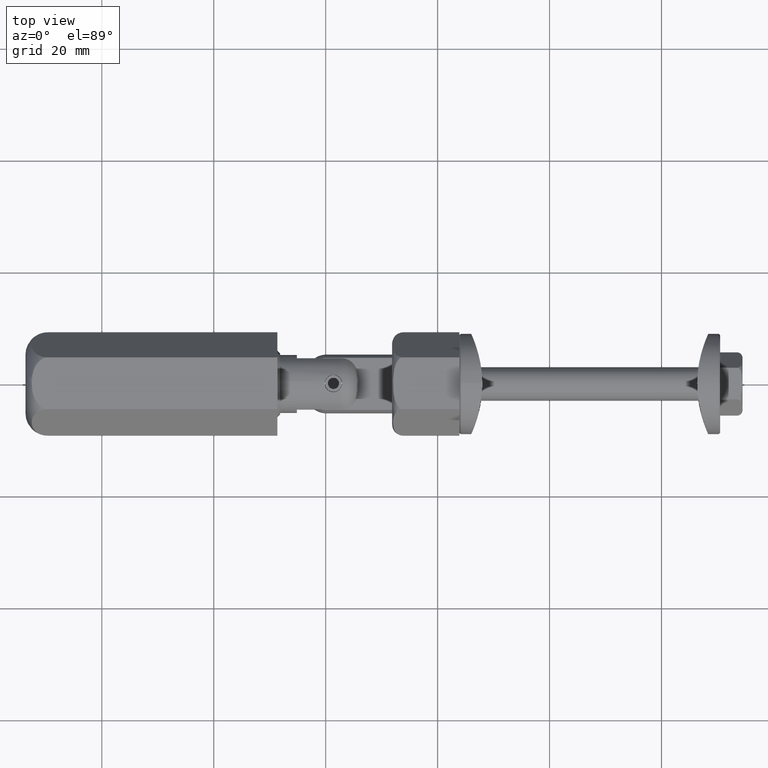
[diagram: clean part render]
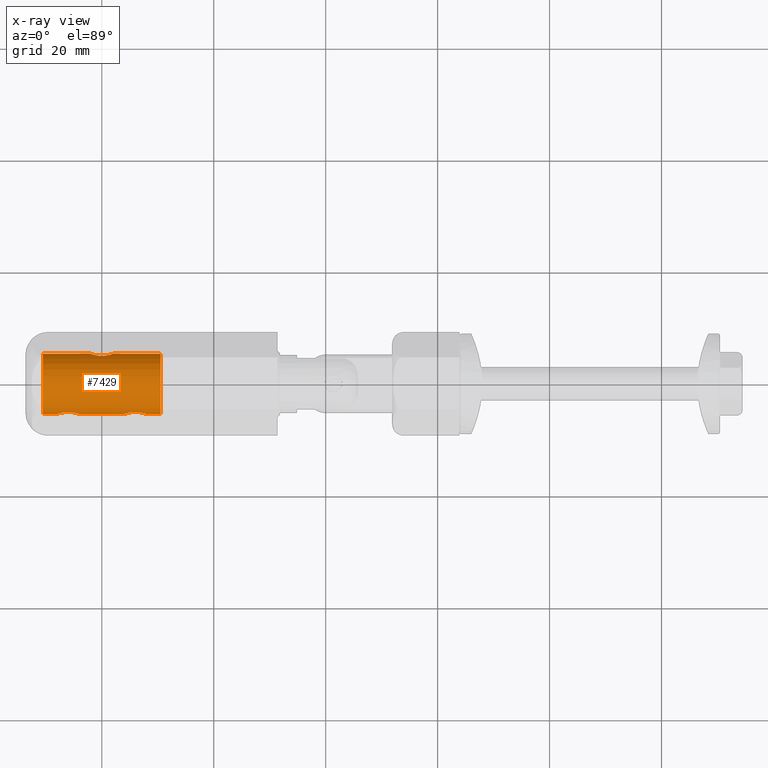
[diagram: x-ray — body ghosted, one internal face saturated and labeled with its STEP entity id]
A machine part, top view, then the same camera in x-ray: the body is ghosted and one INTERNAL B-rep face — a face not visible from any outside direction — is saturated and labeled: STEP entity #7429.
In plain terms, the highlighted cylindrical surface (bore or boss wall) has radius 5.4 mm, axis along (-1, -0, -0).
Its self-contained STEP definition (entity closure, byte-faithful):
#135 = CARTESIAN_POINT ( 'NONE',  ( -7.991625187186429891, -5.358553140657541292, 0.6802209089531774389 ) ) ;
#191 = CARTESIAN_POINT ( 'NONE',  ( -6.140251081764645846, -4.974937185533103268, -2.099999999999993872 ) ) ;
#259 = CARTESIAN_POINT ( 'NONE',  ( -7.282794228918615609, -5.136471162072797192, -1.668273000258003291 ) ) ;
#264 = CARTESIAN_POINT ( 'NONE',  ( -10.49999999999999822, 0.000000000000000000, 0.000000000000000000 ) ) ;
#323 = CARTESIAN_POINT ( 'NONE',  ( -7.884753136561721831, -5.319757067836338393, 0.9364704936265901836 ) ) ;
#441 = CARTESIAN_POINT ( 'NONE',  ( -4.417717275697473411, -5.219672051547602720, 1.387521242124890364 ) ) ;
#506 = CARTESIAN_POINT ( 'NONE',  ( -6.000000000000000000, -4.974937185533103268, -2.099999999999994316 ) ) ;
#514 = EDGE_LOOP ( 'NONE', ( #5483 ) ) ;
#568 = CARTESIAN_POINT ( 'NONE',  ( -4.180161386774108756, -5.296858274872640493, 1.056724491976107405 ) ) ;
#666 = CARTESIAN_POINT ( 'NONE',  ( 1.668412868437795016, 5.246760572531174560, -1.282527867362458052 ) ) ;
#738 = CARTESIAN_POINT ( 'NONE',  ( -1.668050932411029530, 5.246643377326954294, -1.283026028857427114 ) ) ;
#751 = CARTESIAN_POINT ( 'NONE',  ( 3.968306716493245290, -5.373745689870734310, -0.5490319698242766000 ) ) ;
#851 = CARTESIAN_POINT ( 'NONE',  ( -2.031798469995393042, 5.373785946887119636, -0.5484948635254475180 ) ) ;
#879 = FACE_BOUND ( 'NONE', #17282, .T. ) ;
#915 = CARTESIAN_POINT ( 'NONE',  ( -2.099908249304174301, 5.399964319180401873, 0.1399772001405748534 ) ) ;
#929 = CARTESIAN_POINT ( 'NONE',  ( 7.668412868437791019, -5.246760572531178113, 1.282527867362456497 ) ) ;
#1036 = CARTESIAN_POINT ( 'NONE',  ( 4.612394851623447423, -5.164003895428391111, 1.582107489069745077 ) ) ;
#1072 = CARTESIAN_POINT ( 'NONE',  ( 1.579908977316313523, 5.218962836947516060, 1.390125420575113013 ) ) ;
#1088 = CARTESIAN_POINT ( 'NONE',  ( 7.884845962894784677, -5.319794957164332594, -0.9360331588650834256 ) ) ;
#1472 = CARTESIAN_POINT ( 'NONE',  ( -7.990577497093299009, -5.358170459842813926, -0.6828537137042841598 ) ) ;
#1603 = CARTESIAN_POINT ( 'NONE',  ( -6.935615349940571051, -5.060604854083007531, -1.885070664797263262 ) ) ;
#1747 = DIRECTION ( 'NONE',  ( 0.000000000000000000, 0.000000000000000000, -1.000000000000000000 ) ) ;
#1906 = CARTESIAN_POINT ( 'NONE',  ( -7.580157232215623431, -5.219040626659445792, 1.389825628000990632 ) ) ;
#1965 = CARTESIAN_POINT ( 'NONE',  ( -4.115154037105216212, -5.319794957164331706, -0.9360331588650823154 ) ) ;
#2034 = CARTESIAN_POINT ( 'NONE',  ( -6.555608497514157307, -4.999672802791437221, 2.043514743027719849 ) ) ;
#2132 = CARTESIAN_POINT ( 'NONE',  ( 2.086055961531837699, 5.394534081697162087, -0.2782718908838490157 ) ) ;
#2145 = CARTESIAN_POINT ( 'NONE',  ( 3.900091750695831916, -5.399964319180400096, -0.1399772001405726329 ) ) ;
#2188 = FACE_OUTER_BOUND ( 'NONE', #5687, .T. ) ;
#2195 = CARTESIAN_POINT ( 'NONE',  ( -1.990577497093305670, 5.358170459842813926, 0.6828537137042874905 ) ) ;
#2257 = CARTESIAN_POINT ( 'NONE',  ( -1.819803535374707515, 5.296844128638656279, -1.056818241932206970 ) ) ;
#2272 = CARTESIAN_POINT ( 'NONE',  ( 4.323390838607419795, -5.246645227839644932, -1.293235488252917120 ) ) ;
#2316 = CARTESIAN_POINT ( 'NONE',  ( -1.056260136305510855, 5.084634835458997415, -1.820147972506347189 ) ) ;
#2378 = CARTESIAN_POINT ( 'NONE',  ( 6.934736164892474797, -5.060438581250524592, 1.885516516394398323 ) ) ;
#2437 = CARTESIAN_POINT ( 'NONE',  ( 7.388245652433504951, -5.164163407327605704, 1.581647187419967127 ) ) ;
#2483 = VERTEX_POINT ( 'NONE', #9741 ) ;
#2559 = CARTESIAN_POINT ( 'NONE',  ( 7.579908977316311081, -5.218962836947517836, -1.390125420575107906 ) ) ;
#2993 = AXIS2_PLACEMENT_3D ( 'NONE', #13216, #12044, #10579 ) ;
#3077 = CARTESIAN_POINT ( 'NONE',  ( -7.832585576661316829, -5.300824229775854768, -1.061311438376507432 ) ) ;
#3144 = CARTESIAN_POINT ( 'NONE',  ( -7.282948882842536165, -5.136514749360887144, 1.668132573082893533 ) ) ;
#3330 = CARTESIAN_POINT ( 'NONE',  ( -4.114300735567389289, -5.320096769864114172, 0.9343951663687556364 ) ) ;
#3485 = CARTESIAN_POINT ( 'NONE',  ( 1.388245652433512056, 5.164163407327602151, -1.581647187419972012 ) ) ;
#3547 = CARTESIAN_POINT ( 'NONE',  ( 2.043419194627273061, 5.377346774636370341, 0.5564597994211183396 ) ) ;
#3558 = CARTESIAN_POINT ( 'NONE',  ( 3.899909160529582586, -5.400035326454199591, 0.1372105609176197671 ) ) ;
#3604 = CARTESIAN_POINT ( 'NONE',  ( 0.1374320018480999495, 4.974919345566272355, -2.100042263199663140 ) ) ;
#3670 = CARTESIAN_POINT ( 'NONE',  ( 7.818931679217421049, -5.296538715663783314, -1.058394221551734571 ) ) ;
#3715 = CARTESIAN_POINT ( 'NONE',  ( -1.282948882842542604, 5.136514749360886256, -1.668132573082898640 ) ) ;
#3728 = CARTESIAN_POINT ( 'NONE',  ( 7.282983889225443264, -5.136531177239205270, 1.668071361485010229 ) ) ;
#3789 = CARTESIAN_POINT ( 'NONE',  ( 7.991555481169719144, -5.358531623440703662, 0.6801932139016383383 ) ) ;
#3844 = CARTESIAN_POINT ( 'NONE',  ( 3.968201530004614952, -5.373785946887118747, 0.5484948635254484062 ) ) ;
#4183 = CARTESIAN_POINT ( 'NONE',  ( 6.000000000000000000, -4.974937185533103268, -2.099999999999992095 ) ) ;
#4355 = DIRECTION ( 'NONE',  ( 1.000000000000000000, -0.000000000000000000, -0.000000000000000000 ) ) ;
#4538 = CARTESIAN_POINT ( 'NONE',  ( -4.333736240929697558, -5.246069464623563050, -1.285408832661303569 ) ) ;
#4543 = DIRECTION ( 'NONE',  ( 0.000000000000000000, 0.000000000000000000, -1.000000000000000000 ) ) ;
#4685 = VERTEX_POINT ( 'NONE', #9443 ) ;
#4791 = CARTESIAN_POINT ( 'NONE',  ( -7.387605148376553466, -5.164003895428391111, 1.582107489069743744 ) ) ;
#4893 = CARTESIAN_POINT ( 'NONE',  ( 1.991555481169722475, 5.358531623440700997, -0.6801932139016390044 ) ) ;
#4952 = CARTESIAN_POINT ( 'NONE',  ( -1.832585576661324378, 5.300824229775852103, 1.061311438376511207 ) ) ;
#4966 = CARTESIAN_POINT ( 'NONE',  ( 4.009422502906700991, -5.358170459842813038, -0.6828537137042827165 ) ) ;
#5000 = B_SPLINE_CURVE_WITH_KNOTS ( 'NONE', 3,
 ( #11813, #10653, #13231, #17468, #7659, #12053, #10592, #13423, #11874, #2272, #9116, #4966, #751, #10523, #2145, #3558, #13352, #3844, #9288, #15028, #8005, #16364, #14977, #1036, #8114, #6662, #13651, #10833, #13537, #5246, #9512, #6714, #15080, #2378, #10710, #3728, #2437, #16419, #929, #8055, #12217, #3789, #5313, #12114, #6485, #12166, #16256, #1088, #3670, #17809, #2559, #9459, #10884, #6604, #13596, #5140, #10940, #6545 ),
 .UNSPECIFIED., .T., .F.,
 ( 4, 2, 2, 2, 2, 2, 2, 2, 2, 2, 2, 2, 2, 2, 2, 2, 2, 2, 2, 2, 2, 2, 2, 2, 2, 2, 2, 2, 4 ),
 ( 0.000000000000000000, 0.0004144184655072289032, 0.0008288369310144578063, 0.001243255396521686113, 0.001657673862028914745, 0.002486510793043370492, 0.002900929258550598040, 0.003315347724057825154, 0.003729766189565052702, 0.004144184655072279816, 0.004558603120579507798, 0.004973021586086734044, 0.005387440051593962026, 0.005801858517101190008, 0.006630695448115643369, 0.007045113913622868748, 0.007459532379130095862, 0.007873950844637321242, 0.008288369310144545754, 0.008702787775651773736, 0.009117206241158998248, 0.009531624706666224495, 0.009946043172173449007, 0.01077488010318790150, 0.01118929856869512601, 0.01160371703420235399, 0.01201813549970958198, 0.01243255396521680822, 0.01326139089623126245 ),
 .UNSPECIFIED. ) ;
#5072 = CARTESIAN_POINT ( 'NONE',  ( -2.100090839470423187, 5.400035326454198703, -0.1372105609176177132 ) ) ;
#5115 = EDGE_CURVE ( 'NONE', #4685, #4685, #12951, .T. ) ;
#5128 = CARTESIAN_POINT ( 'NONE',  ( 0.000000000000000000, 4.974937185533100603, 2.099999999999999645 ) ) ;
#5140 = CARTESIAN_POINT ( 'NONE',  ( 6.551325390681813410, -4.999044019398716898, -2.045119032392942238 ) ) ;
#5246 = CARTESIAN_POINT ( 'NONE',  ( 6.137432001848101670, -4.974919345566272355, 2.100042263199659143 ) ) ;
#5313 = CARTESIAN_POINT ( 'NONE',  ( 8.031662028626511685, -5.373734184206781173, 0.5490119500846920575 ) ) ;
#5483 = ORIENTED_EDGE ( 'NONE', *, *, #11139, .T. ) ;
#5579 = AXIS2_PLACEMENT_3D ( 'NONE', #264, #4355, #4543 ) ;
#5687 = EDGE_LOOP ( 'NONE', ( #9441 ) ) ;
#5814 = CARTESIAN_POINT ( 'NONE',  ( -6.548061806127426721, -5.003223250429030600, -2.031899670975930494 ) ) ;
#5875 = CARTESIAN_POINT ( 'NONE',  ( -6.682092888485774651, -5.019919931099192212, -1.990883418435331231 ) ) ;
#5903 = DIRECTION ( 'NONE',  ( -1.000000000000000000, 0.000000000000000000, 0.000000000000000000 ) ) ;
#5942 = CARTESIAN_POINT ( 'NONE',  ( -4.008444518830284409, -5.358531623440704550, 0.6801932139016368950 ) ) ;
#6003 = CARTESIAN_POINT ( 'NONE',  ( -5.450486525395368709, -5.003354735761945449, 2.031579572295539204 ) ) ;
#6181 = CARTESIAN_POINT ( 'NONE',  ( -5.065694082993402958, -5.060340690301646127, -1.885786398087871074 ) ) ;
#6349 = CARTESIAN_POINT ( 'NONE',  ( 1.818931679217421937, 5.296538715663782426, 1.058394221551736791 ) ) ;
#6412 = CARTESIAN_POINT ( 'NONE',  ( -1.991625187186438550, 5.358553140657543956, -0.6802209089531784381 ) ) ;
#6485 = CARTESIAN_POINT ( 'NONE',  ( 8.100062458047192493, -5.400024289238460895, 0.1374906322084609445 ) ) ;
#6545 = CARTESIAN_POINT ( 'NONE',  ( 5.999999999999998224, -4.974937185533102380, -2.099999999999991651 ) ) ;
#6604 = CARTESIAN_POINT ( 'NONE',  ( 7.054301927579855302, -5.084236594972622925, -1.821237721155754219 ) ) ;
#6662 = CARTESIAN_POINT ( 'NONE',  ( 4.943739863694495362, -5.084634835458997415, 1.820147972506342970 ) ) ;
#6714 = CARTESIAN_POINT ( 'NONE',  ( 6.549513474604635732, -5.003354735761944561, 2.031579572295540537 ) ) ;
#7005 = FACE_BOUND ( 'NONE', #514, .T. ) ;
#7046 = CARTESIAN_POINT ( 'NONE',  ( -7.389104040718831534, -5.164414487880318205, -1.580746355711178719 ) ) ;
#7108 = CARTESIAN_POINT ( 'NONE',  ( -7.055635400948705005, -5.084500080125351928, -1.820530070446688242 ) ) ;
#7359 = CARTESIAN_POINT ( 'NONE',  ( -6.276796854051416297, -4.974972990624474178, 2.099915177099825669 ) ) ;
#7423 = CARTESIAN_POINT ( 'NONE',  ( -4.612949275034608831, -5.163852285887119642, -1.582609031917473263 ) ) ;
#7429 = ADVANCED_FACE ( 'NONE', ( #879, #15284, #7005, #2188, #15063 ), #12233, .T. ) ;
#7544 = CARTESIAN_POINT ( 'NONE',  ( -5.722762334073071777, -4.980808596654568099, 2.086245405970250211 ) ) ;
#7642 = CARTESIAN_POINT ( 'NONE',  ( 1.282983889225447038, 5.136531177239203494, -1.668071361485014004 ) ) ;
#7659 = CARTESIAN_POINT ( 'NONE',  ( 5.317907111514229790, -5.019919931099195765, -1.990883418435329899 ) ) ;
#7708 = CARTESIAN_POINT ( 'NONE',  ( -1.884753136561728715, 5.319757067836340170, -0.9364704936265907387 ) ) ;
#7773 = CARTESIAN_POINT ( 'NONE',  ( -2.086111042988949560, 5.394555557593815109, -0.2778351207262659273 ) ) ;
#7828 = CARTESIAN_POINT ( 'NONE',  ( 0.9347361648924766842, 5.060438581250521040, -1.885516516394402986 ) ) ;
#7941 = CARTESIAN_POINT ( 'NONE',  ( 1.666263759070307549, 5.246069464623562162, 1.285408832661308232 ) ) ;
#8005 = CARTESIAN_POINT ( 'NONE',  ( 4.180196464625298702, -5.296844128638656279, 1.056818241932205416 ) ) ;
#8055 = CARTESIAN_POINT ( 'NONE',  ( 7.819838613225891244, -5.296858274872643157, 1.056724491976108071 ) ) ;
#8114 = CARTESIAN_POINT ( 'NONE',  ( 4.717051117157463835, -5.136514749360885368, 1.668132573082896197 ) ) ;
#8158 = CARTESIAN_POINT ( 'NONE',  ( 0.2805021635292925808, 4.974937185533100603, 2.099999999999999201 ) ) ;
#8231 = CIRCLE ( 'NONE', #5579, 5.400000000000000355 ) ;
#8439 = CARTESIAN_POINT ( 'NONE',  ( -8.100090839470418302, -5.400035326454198703, 0.1372105609176175189 ) ) ;
#8696 = CARTESIAN_POINT ( 'NONE',  ( -8.086111042988944675, -5.394555557593813333, 0.2778351207262653721 ) ) ;
#8877 = CARTESIAN_POINT ( 'NONE',  ( -4.181068320782583392, -5.296538715663784203, -1.058394221551732128 ) ) ;
#8932 = CARTESIAN_POINT ( 'NONE',  ( -4.717016110774557625, -5.136531177239205270, 1.668071361485009785 ) ) ;
#8998 = CARTESIAN_POINT ( 'NONE',  ( -3.913944038468171183, -5.394534081697160310, 0.2782718908838482941 ) ) ;
#9039 = CARTESIAN_POINT ( 'NONE',  ( 1.582282724302532584, 5.219672051547601832, -1.387521242124894139 ) ) ;
#9050 = VERTEX_POINT ( 'NONE', #12376 ) ;
#9107 = CARTESIAN_POINT ( 'NONE',  ( 1.885699264432615818, 5.320096769864116837, -0.9343951663687586340 ) ) ;
#9116 = CARTESIAN_POINT ( 'NONE',  ( 4.167414423338680507, -5.300824229775853880, -1.061311438376505656 ) ) ;
#9252 = VERTEX_POINT ( 'NONE', #4183 ) ;
#9288 = CARTESIAN_POINT ( 'NONE',  ( 4.008374812813568333, -5.358553140657543956, 0.6802209089531797703 ) ) ;
#9333 = CARTESIAN_POINT ( 'NONE',  ( 1.280190286635545016, 5.135834534830359566, 1.670201251784716900 ) ) ;
#9441 = ORIENTED_EDGE ( 'NONE', *, *, #11511, .T. ) ;
#9443 = CARTESIAN_POINT ( 'NONE',  ( 10.49999999999999467, 0.000000000000000000, -5.400000000000000355 ) ) ;
#9459 = CARTESIAN_POINT ( 'NONE',  ( 7.387050724965390280, -5.163852285887118754, -1.582609031917474596 ) ) ;
#9512 = CARTESIAN_POINT ( 'NONE',  ( 6.277237665926934440, -4.980808596654564546, 2.086245405970251099 ) ) ;
#9683 = ORIENTED_EDGE ( 'NONE', *, *, #12879, .T. ) ;
#9695 = VERTEX_POINT ( 'NONE', #12618 ) ;
#9741 = CARTESIAN_POINT ( 'NONE',  ( -6.000000000000000000, -4.974937185533102380, -2.099999999999993427 ) ) ;
#9971 = CARTESIAN_POINT ( 'NONE',  ( -6.277848846800151428, -4.980870519494174253, -2.086093965903640157 ) ) ;
#10002 = B_SPLINE_CURVE_WITH_KNOTS ( 'NONE', 3,
 ( #15470, #191, #9971, #5814, #5875, #1603, #7108, #259, #7046, #10026, #3077, #1472, #16792, #17050, #16868, #8439, #8696, #11280, #135, #323, #10099, #13174, #1906, #4791, #3144, #17113, #15784, #2034, #7359, #11575, #7544, #6003, #15901, #13051, #10220, #8932, #12923, #441, #14567, #568, #3330, #5942, #10161, #8998, #10349, #17298, #14509, #1965, #8877, #4538, #10408, #7423, #11698, #15714, #6181, #13108, #14445, #506 ),
 .UNSPECIFIED., .T., .F.,
 ( 4, 2, 2, 2, 2, 2, 2, 2, 2, 2, 2, 2, 2, 2, 2, 2, 2, 2, 2, 2, 2, 2, 2, 2, 2, 2, 2, 2, 4 ),
 ( 0.000000000000000000, 0.0004144184655072278732, 0.0008288369310144557463, 0.001243255396521683511, 0.001657673862028911493, 0.002486510793043365287, 0.002900929258550591534, 0.003315347724057817781, 0.003729766189565043594, 0.004144184655072270275, 0.004558603120579496522, 0.004973021586086722769, 0.005387440051593950750, 0.005801858517101178732, 0.006630695448115633828, 0.007045113913622861809, 0.007459532379130087189, 0.007873950844637314303, 0.008288369310144540550, 0.008702787775651766797, 0.009117206241158993044, 0.009531624706666221025, 0.009946043172173445537, 0.01077488010318789977, 0.01118929856869512601, 0.01160371703420235226, 0.01201813549970957851, 0.01243255396521680475, 0.01326139089623125898 ),
 .UNSPECIFIED. ) ;
#10026 = CARTESIAN_POINT ( 'NONE',  ( -7.676609161392583758, -5.246645227839643155, -1.293235488252918008 ) ) ;
#10099 = CARTESIAN_POINT ( 'NONE',  ( -7.819803535374703074, -5.296844128638654503, 1.056818241932204527 ) ) ;
#10161 = CARTESIAN_POINT ( 'NONE',  ( -3.968337971373495421, -5.373734184206780284, 0.5490119500846909473 ) ) ;
#10209 = B_SPLINE_CURVE_WITH_KNOTS ( 'NONE', 3,
 ( #5128, #10506, #14791, #13472, #14845, #17631, #16064, #13407, #17521, #16242, #4952, #2195, #11985, #11858, #915, #5072, #7773, #851, #6412, #7708, #2257, #738, #16122, #10695, #3715, #2316, #12041, #16178, #12100, #3604, #17452, #13526, #14908, #7828, #16006, #7642, #3485, #9039, #666, #13283, #9107, #4893, #14668, #2132, #11925, #10642, #3547, #14728, #6349, #7941, #1072, #16350, #9333, #13581, #12378, #12322, #8158, #13692 ),
 .UNSPECIFIED., .T., .F.,
 ( 4, 2, 2, 2, 2, 2, 2, 2, 2, 2, 2, 2, 2, 2, 2, 2, 2, 2, 2, 2, 2, 2, 2, 2, 2, 2, 2, 2, 4 ),
 ( 0.000000000000000000, 0.0004144184655072280358, 0.0008288369310144560716, 0.001243255396521683511, 0.001657673862028911059, 0.002486510793043365721, 0.002900929258550593703, 0.003315347724057821251, 0.003729766189565048365, 0.004144184655072276346, 0.004558603120579504328, 0.004973021586086732310, 0.005387440051593961159, 0.005801858517101189140, 0.006630695448115645103, 0.007045113913622873085, 0.007459532379130101067, 0.007873950844637329916, 0.008288369310144557897, 0.008702787775651784144, 0.009117206241159012126, 0.009531624706666240107, 0.009946043172173468089, 0.01077488010318792579, 0.01118929856869515377, 0.01160371703420238175, 0.01201813549970960973, 0.01243255396521683771, 0.01326139089623129368 ),
 .UNSPECIFIED. ) ;
#10220 = CARTESIAN_POINT ( 'NONE',  ( -4.942972761544950799, -5.084802007706324289, 1.819671163749810194 ) ) ;
#10325 = AXIS2_PLACEMENT_3D ( 'NONE', #13139, #5903, #1747 ) ;
#10349 = CARTESIAN_POINT ( 'NONE',  ( -3.899937541952815057, -5.400024289238458230, 0.1374906322084607224 ) ) ;
#10408 = CARTESIAN_POINT ( 'NONE',  ( -4.420091022683690696, -5.218962836947519612, -1.390125420575108128 ) ) ;
#10506 = CARTESIAN_POINT ( 'NONE',  ( -0.1402510817646463182, 4.974937185533100603, 2.100000000000000089 ) ) ;
#10523 = CARTESIAN_POINT ( 'NONE',  ( 3.913768612120817281, -5.394601611326840462, -0.2772224708844618357 ) ) ;
#10579 = DIRECTION ( 'NONE',  ( 0.000000000000000000, 0.000000000000000000, 1.000000000000000000 ) ) ;
#10592 = CARTESIAN_POINT ( 'NONE',  ( 4.944364599051297660, -5.084500080125353705, -1.820530070446686688 ) ) ;
#10642 = CARTESIAN_POINT ( 'NONE',  ( 2.099874438335663562, 5.399951170468113126, 0.2778333129803797763 ) ) ;
#10653 = CARTESIAN_POINT ( 'NONE',  ( 5.859748918235354154, -4.974937185533103268, -2.099999999999992095 ) ) ;
#10695 = CARTESIAN_POINT ( 'NONE',  ( -1.387605148376555686, 5.164003895428389335, -1.582107489069747963 ) ) ;
#10710 = CARTESIAN_POINT ( 'NONE',  ( 7.057027238455054530, -5.084802007706321625, 1.819671163749810638 ) ) ;
#10833 = CARTESIAN_POINT ( 'NONE',  ( 5.444391502485843581, -4.999672802791436332, 2.043514743027721181 ) ) ;
#10884 = CARTESIAN_POINT ( 'NONE',  ( 7.280190286635541241, -5.135834534830360454, -1.670201251784708907 ) ) ;
#10940 = CARTESIAN_POINT ( 'NONE',  ( 6.280502163529286364, -4.974937185533100603, -2.099999999999991207 ) ) ;
#11139 = EDGE_CURVE ( 'NONE', #9695, #9695, #10209, .T. ) ;
#11280 = CARTESIAN_POINT ( 'NONE',  ( -8.031798469995385048, -5.373785946887119636, 0.5484948635254462967 ) ) ;
#11511 = EDGE_CURVE ( 'NONE', #9050, #9050, #8231, .T. ) ;
#11575 = CARTESIAN_POINT ( 'NONE',  ( -5.862567998151900994, -4.974919345566272355, 2.100042263199657366 ) ) ;
#11698 = CARTESIAN_POINT ( 'NONE',  ( -4.719809713364458759, -5.135834534830362230, -1.670201251784712237 ) ) ;
#11813 = CARTESIAN_POINT ( 'NONE',  ( 5.999999999999998224, -4.974937185533102380, -2.099999999999991651 ) ) ;
#11858 = CARTESIAN_POINT ( 'NONE',  ( -2.086231387879189825, 5.394601611326842239, 0.2772224708844648888 ) ) ;
#11874 = CARTESIAN_POINT ( 'NONE',  ( 4.610895959281169354, -5.164414487880319093, -1.580746355711177609 ) ) ;
#11925 = CARTESIAN_POINT ( 'NONE',  ( 2.100062458047191605, 5.400024289238460007, -0.1374906322084606669 ) ) ;
#11985 = CARTESIAN_POINT ( 'NONE',  ( -2.031693283506760928, 5.373745689870733422, 0.5490319698242811519 ) ) ;
#12041 = CARTESIAN_POINT ( 'NONE',  ( -0.9339138608105241879, 5.060306505788913611, -1.885860076319657352 ) ) ;
#12044 = DIRECTION ( 'NONE',  ( -1.000000000000000000, -0.000000000000000000, -0.000000000000000000 ) ) ;
#12053 = CARTESIAN_POINT ( 'NONE',  ( 5.064384650059426285, -5.060604854083005755, -1.885070664797261042 ) ) ;
#12100 = CARTESIAN_POINT ( 'NONE',  ( -0.2767968540514177955, 4.974972990624468849, -2.099915177099832331 ) ) ;
#12114 = CARTESIAN_POINT ( 'NONE',  ( 8.086055961531831926, -5.394534081697162087, 0.2782718908838501815 ) ) ;
#12166 = CARTESIAN_POINT ( 'NONE',  ( 8.099874438335657345, -5.399951170468113126, -0.2778333129803764456 ) ) ;
#12217 = CARTESIAN_POINT ( 'NONE',  ( 7.885699264432612487, -5.320096769864117725, 0.9343951663687578568 ) ) ;
#12233 = CYLINDRICAL_SURFACE ( 'NONE', #2993, 5.400000000000000355 ) ;
#12322 = CARTESIAN_POINT ( 'NONE',  ( 0.5513253906818134098, 4.999044019398711569, 2.045119032392950231 ) ) ;
#12376 = CARTESIAN_POINT ( 'NONE',  ( -10.49999999999999822, 0.000000000000000000, -5.400000000000000355 ) ) ;
#12378 = CARTESIAN_POINT ( 'NONE',  ( 0.9343059170066002617, 5.060340690301646127, 1.885786398087877513 ) ) ;
#12472 = ORIENTED_EDGE ( 'NONE', *, *, #17761, .T. ) ;
#12618 = CARTESIAN_POINT ( 'NONE',  ( 0.000000000000000000, 4.974937185533099715, 2.100000000000000089 ) ) ;
#12879 = EDGE_CURVE ( 'NONE', #2483, #2483, #10002, .T. ) ;
#12923 = CARTESIAN_POINT ( 'NONE',  ( -4.611754347566496826, -5.164163407327604816, 1.581647187419967793 ) ) ;
#12951 = CIRCLE ( 'NONE', #10325, 5.400000000000000355 ) ;
#13045 = EDGE_LOOP ( 'NONE', ( #12472 ) ) ;
#13051 = CARTESIAN_POINT ( 'NONE',  ( -5.065263835107526091, -5.060438581250521928, 1.885516516394396991 ) ) ;
#13108 = CARTESIAN_POINT ( 'NONE',  ( -5.448674609318192807, -4.999044019398716010, -2.045119032392943570 ) ) ;
#13139 = CARTESIAN_POINT ( 'NONE',  ( 10.49999999999999467, 0.000000000000000000, 0.000000000000000000 ) ) ;
#13174 = CARTESIAN_POINT ( 'NONE',  ( -7.668050932411023091, -5.246643377326956958, 1.283026028857425782 ) ) ;
#13216 = CARTESIAN_POINT ( 'NONE',  ( 11.00000000000000000, 0.000000000000000000, 0.000000000000000000 ) ) ;
#13231 = CARTESIAN_POINT ( 'NONE',  ( 5.722151153199847684, -4.980870519494176030, -2.086093965903638381 ) ) ;
#13283 = CARTESIAN_POINT ( 'NONE',  ( 1.819838613225897683, 5.296858274872640493, -1.056724491976109626 ) ) ;
#13352 = CARTESIAN_POINT ( 'NONE',  ( 3.913888957011057990, -5.394555557593814221, 0.2778351207262672040 ) ) ;
#13388 = ORIENTED_EDGE ( 'NONE', *, *, #5115, .T. ) ;
#13407 = CARTESIAN_POINT ( 'NONE',  ( -1.282794228918620494, 5.136471162072798080, 1.668273000258009509 ) ) ;
#13423 = CARTESIAN_POINT ( 'NONE',  ( 4.717205771081385279, -5.136471162072798968, -1.668273000258001737 ) ) ;
#13472 = CARTESIAN_POINT ( 'NONE',  ( -0.5480618061274286079, 5.003223250429029711, 2.031899670975936267 ) ) ;
#13526 = CARTESIAN_POINT ( 'NONE',  ( 0.5495134746046361762, 5.003354735761941896, -2.031579572295544978 ) ) ;
#13537 = CARTESIAN_POINT ( 'NONE',  ( 5.723203145948585480, -4.974972990624473290, 2.099915177099827446 ) ) ;
#13581 = CARTESIAN_POINT ( 'NONE',  ( 1.054301927579856635, 5.084236594972620260, 1.821237721155762213 ) ) ;
#13596 = CARTESIAN_POINT ( 'NONE',  ( 6.934305917006596154, -5.060340690301647015, -1.885786398087869520 ) ) ;
#13651 = CARTESIAN_POINT ( 'NONE',  ( 5.066086139189480697, -5.060306505788916276, 1.885860076319653800 ) ) ;
#13692 = CARTESIAN_POINT ( 'NONE',  ( 0.000000000000000000, 4.974937185533100603, 2.099999999999999645 ) ) ;
#14445 = CARTESIAN_POINT ( 'NONE',  ( -5.719497836470708307, -4.974937185533101491, -2.099999999999994316 ) ) ;
#14471 = EDGE_LOOP ( 'NONE', ( #13388 ) ) ;
#14509 = CARTESIAN_POINT ( 'NONE',  ( -3.956580805372733156, -5.377346774636369453, -0.5564597994211160081 ) ) ;
#14567 = CARTESIAN_POINT ( 'NONE',  ( -4.331587131562209869, -5.246760572531172784, 1.282527867362454721 ) ) ;
#14668 = CARTESIAN_POINT ( 'NONE',  ( 2.031662028626512129, 5.373734184206780284, -0.5490119500846910583 ) ) ;
#14728 = CARTESIAN_POINT ( 'NONE',  ( 1.884845962894790006, 5.319794957164329041, 0.9360331588650857570 ) ) ;
#14791 = CARTESIAN_POINT ( 'NONE',  ( -0.2778488468001535927, 4.980870519494172477, 2.086093965903645486 ) ) ;
#14845 = CARTESIAN_POINT ( 'NONE',  ( -0.6820928884857738739, 5.019919931099188659, 1.990883418435338115 ) ) ;
#14908 = CARTESIAN_POINT ( 'NONE',  ( 0.6809107172085054893, 5.019755605750174432, -1.991297272318871325 ) ) ;
#14977 = CARTESIAN_POINT ( 'NONE',  ( 4.419842767784378346, -5.219040626659444904, 1.389825628000991298 ) ) ;
#15028 = CARTESIAN_POINT ( 'NONE',  ( 4.115246863438279057, -5.319757067836338393, 0.9364704936265904056 ) ) ;
#15063 = FACE_OUTER_BOUND ( 'NONE', #14471, .T. ) ;
#15080 = CARTESIAN_POINT ( 'NONE',  ( 6.680910717208505822, -5.019755605750177985, 1.991297272318867551 ) ) ;
#15284 = FACE_BOUND ( 'NONE', #13045, .T. ) ;
#15470 = CARTESIAN_POINT ( 'NONE',  ( -6.000000000000000000, -4.974937185533103268, -2.099999999999994316 ) ) ;
#15714 = CARTESIAN_POINT ( 'NONE',  ( -4.945698072420145586, -5.084236594972619372, -1.821237721155756439 ) ) ;
#15784 = CARTESIAN_POINT ( 'NONE',  ( -6.933913860810521079, -5.060306505788917164, 1.885860076319651357 ) ) ;
#15901 = CARTESIAN_POINT ( 'NONE',  ( -5.319089282791496842, -5.019755605750177097, 1.991297272318865774 ) ) ;
#16006 = CARTESIAN_POINT ( 'NONE',  ( 1.057027238455054308, 5.084802007706319849, -1.819671163749814635 ) ) ;
#16064 = CARTESIAN_POINT ( 'NONE',  ( -1.055635400948705005, 5.084500080125347488, 1.820530070446693127 ) ) ;
#16122 = CARTESIAN_POINT ( 'NONE',  ( -1.580157232215627205, 5.219040626659446680, -1.389825628000993296 ) ) ;
#16178 = CARTESIAN_POINT ( 'NONE',  ( -0.5556084975141591942, 4.999672802791431891, -2.043514743027724734 ) ) ;
#16242 = CARTESIAN_POINT ( 'NONE',  ( -1.676609161392585312, 5.246645227839642267, 1.293235488252922449 ) ) ;
#16256 = CARTESIAN_POINT ( 'NONE',  ( 8.043419194627272617, -5.377346774636374782, -0.5564597994211162302 ) ) ;
#16350 = CARTESIAN_POINT ( 'NONE',  ( 1.387050724965396054, 5.163852285887117866, 1.582609031917479259 ) ) ;
#16364 = CARTESIAN_POINT ( 'NONE',  ( 4.331949067588979574, -5.246643377326956958, 1.283026028857425338 ) ) ;
#16419 = CARTESIAN_POINT ( 'NONE',  ( 7.582282724302528365, -5.219672051547603608, 1.387521242124891918 ) ) ;
#16792 = CARTESIAN_POINT ( 'NONE',  ( -8.031693283506754710, -5.373745689870734310, -0.5490319698242790425 ) ) ;
#16868 = CARTESIAN_POINT ( 'NONE',  ( -8.099908249304167640, -5.399964319180401873, -0.1399772001405741040 ) ) ;
#17050 = CARTESIAN_POINT ( 'NONE',  ( -8.086231387879184496, -5.394601611326841351, -0.2772224708844640007 ) ) ;
#17113 = CARTESIAN_POINT ( 'NONE',  ( -7.056260136305506414, -5.084634835458999191, 1.820147972506341860 ) ) ;
#17282 = EDGE_LOOP ( 'NONE', ( #9683 ) ) ;
#17298 = CARTESIAN_POINT ( 'NONE',  ( -3.900125561664342211, -5.399951170468113126, -0.2778333129803748913 ) ) ;
#17452 = CARTESIAN_POINT ( 'NONE',  ( 0.2772376659269308874, 4.980808596654563658, -2.086245405970255540 ) ) ;
#17468 = CARTESIAN_POINT ( 'NONE',  ( 5.451938193872572391, -5.003223250429031488, -2.031899670975929162 ) ) ;
#17521 = CARTESIAN_POINT ( 'NONE',  ( -1.389104040718834421, 5.164414487880319982, 1.580746355711183382 ) ) ;
#17631 = CARTESIAN_POINT ( 'NONE',  ( -0.9356153499405740481, 5.060604854083003090, 1.885070664797269480 ) ) ;
#17761 = EDGE_CURVE ( 'NONE', #9252, #9252, #5000, .T. ) ;
#17809 = CARTESIAN_POINT ( 'NONE',  ( 7.666263759070301553, -5.246069464623563050, -1.285408832661302680 ) ) ;